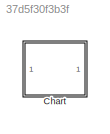
MODEL slx_37d5f30f3b3f
KIND model
CONFIG AbsTol = auto
CONFIG EnableMultiTasking = off
CONFIG FixedStep = auto
CONFIG MaxStep = auto
CONFIG MinStep = auto
CONFIG RelTol = 1e-3
CONFIG SampleTimeConstraint = Unconstrained
CONFIG Solver = VariableStepAuto
CONFIG SolverName = VariableStepAuto
CONFIG StartTime = 0.0
CONFIG StopTime = 0.1
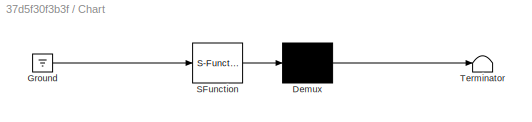
BLOCK [SubSystem] Chart
  ErrorFcn = Stateflow.Translate.translate
  PermitHierarchicalResolution = ExplicitOnly
  Ports = []
  RequestExecContextInheritance = off
  SFBlockType = Chart
  TreatAsAtomicUnit = on
BLOCK [Demux] Chart/ Demux 
  Outputs = 1
  Ports = [1, 1]
BLOCK [Ground] Chart/ Ground 
BLOCK [S-Function] Chart/ SFunction 
  EnableBusSupport = on
  FunctionName = sf_sfun
  PortCounts = [1 1]
  Ports = [1, 1]
  SFcnIsStateOwnerBlock = off
  SFunctionDeploymentMode = off
  Tag = Stateflow S-Function EarlyReturn6_2018a 3
BLOCK [Terminator] Chart/ Terminator 
CHART Chart states=3 transitions=4
  STATE_LABEL 'A\nen: fprintf("en_A")\nex: fprintf("ex_A")'
  STATE_LABEL 'A1\nen: fprintf("en_A1")\nex: fprintf("ex_A1")'
  STATE_LABEL 'A2\nen: fprintf("en_A2")\nex: fprintf("ex_A2")'
  STATE_LABEL '/{E;fprintf("ta")}'
  STATE_LABEL 'A1\nen: fprintf("en_A1")\nex: fprintf("ex_A1")'
  STATE_LABEL 'A2\nen: fprintf("en_A2")\nex: fprintf("ex_A2")'
